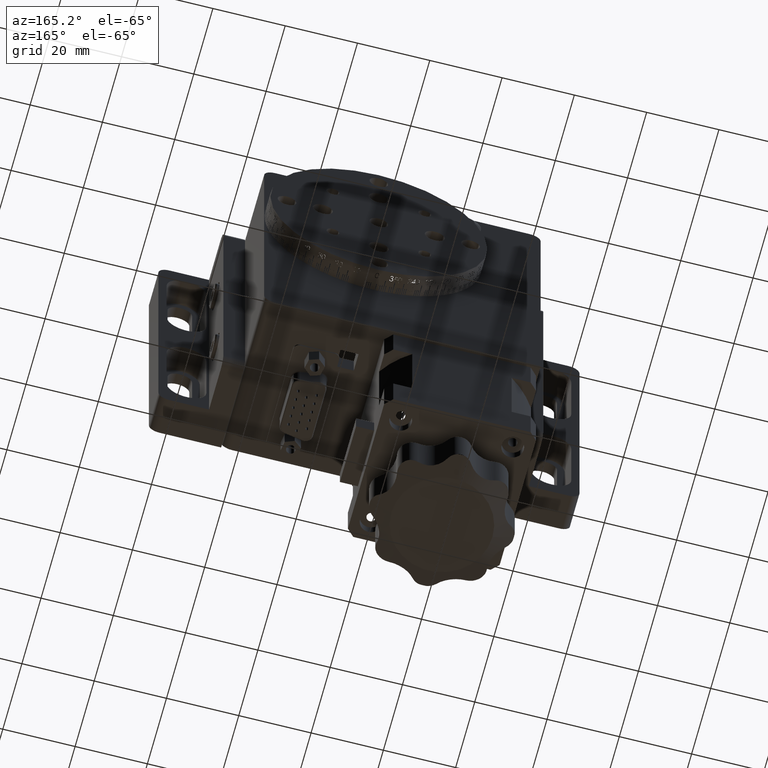
[diagram: clean part render]
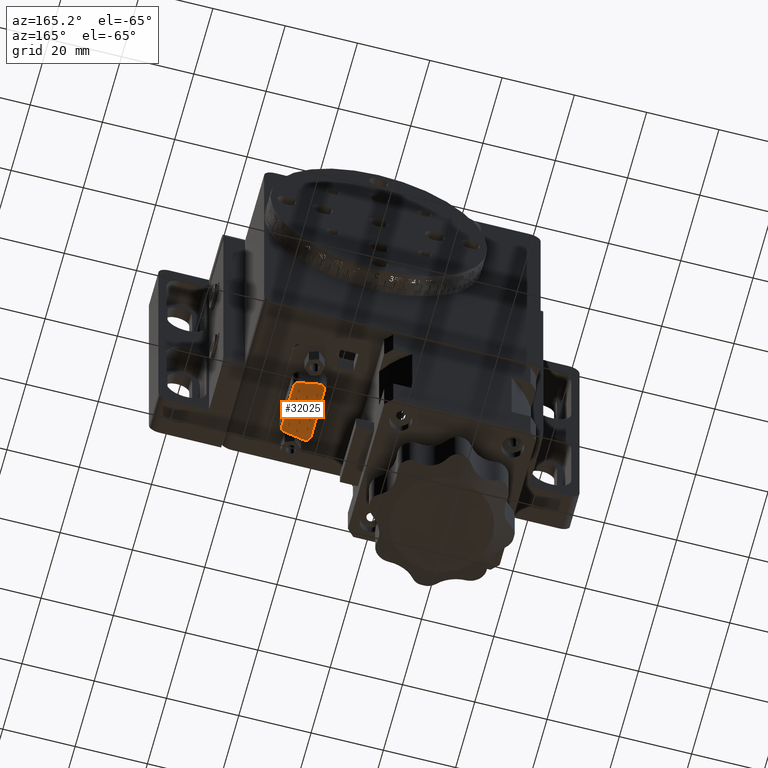
[diagram: same view with one face highlighted and labeled with its STEP entity id]
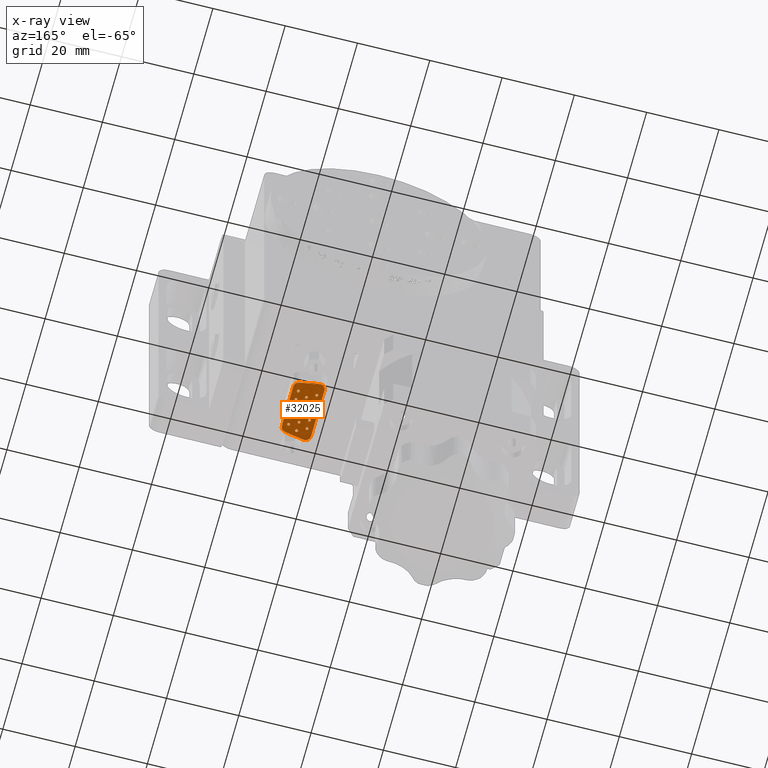
[diagram: x-ray of the same camera — body ghosted, the highlighted face saturated]
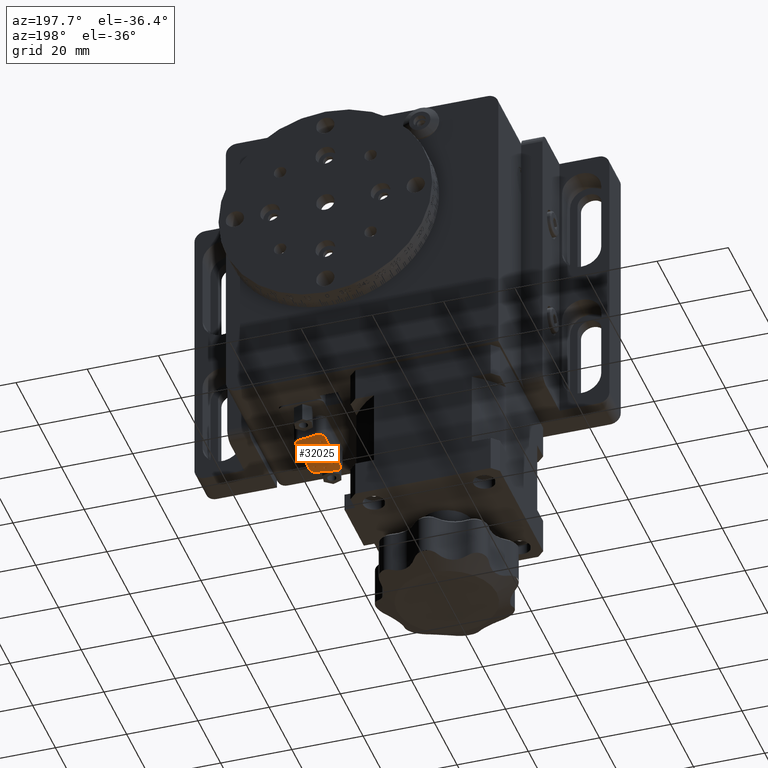
[diagram: same view with one face highlighted and labeled with its STEP entity id]
A machine part, auxiliary view. The second image highlights one B-rep face of the part: STEP entity #32025.
The next image is the same camera in x-ray: the body ghosted, the highlighted face saturated — about 0% of this face is hidden behind the body in this view.
A second angle (auxiliary view) of the same face is appended — the face is thin or edge-on in the first view.
In plain terms, the highlighted planar face has unit normal (-0, 0, -1).
Its self-contained STEP definition (entity closure, byte-faithful):
#244 = DIRECTION ( 'NONE',  ( 0.0000000000000000000, 1.000000000000000000, 0.0000000000000000000 ) ) ;
#1355 = VERTEX_POINT ( 'NONE', #33507 ) ;
#1472 = CARTESIAN_POINT ( 'NONE',  ( 61.66999999999999500, -22.90841392301681600, -6.330000000000007200 ) ) ;
#2205 = CARTESIAN_POINT ( 'NONE',  ( 56.45999999999999400, -17.25000000000000000, -6.330000000000006300 ) ) ;
#2445 = EDGE_LOOP ( 'NONE', ( #77622, #17074 ) ) ;
#2508 = DIRECTION ( 'NONE',  ( 0.0000000000000000000, 1.000000000000000000, 0.0000000000000000000 ) ) ;
#3229 = EDGE_CURVE ( 'NONE', #18492, #105889, #40163, .T. ) ;
#3634 = EDGE_CURVE ( 'NONE', #39946, #1355, #11012, .T. ) ;
#4353 = VERTEX_POINT ( 'NONE', #17652 ) ;
#4457 = CARTESIAN_POINT ( 'NONE',  ( 61.53999999999997800, -14.31000000000000000, -6.330000000000006300 ) ) ;
#5158 = EDGE_CURVE ( 'NONE', #19776, #97295, #109721, .T. ) ;
#5160 = EDGE_CURVE ( 'NONE', #86428, #110819, #46019, .T. ) ;
#5175 = VERTEX_POINT ( 'NONE', #73746 ) ;
#5352 = AXIS2_PLACEMENT_3D ( 'NONE', #89583, #37762, #98311 ) ;
#5374 = CARTESIAN_POINT ( 'NONE',  ( 56.45999999999998000, -11.36999999999999600, -6.330000000000002700 ) ) ;
#5687 = CARTESIAN_POINT ( 'NONE',  ( 54.82999999999999800, -23.84999999999999800, -6.330000000000006300 ) ) ;
#5762 = CARTESIAN_POINT ( 'NONE',  ( 59.00000000000000000, -18.12000000000000100, -6.330000000000006300 ) ) ;
#5775 = DIRECTION ( 'NONE',  ( 0.0000000000000000000, 1.000000000000000000, 0.0000000000000000000 ) ) ;
#6103 = EDGE_CURVE ( 'NONE', #25523, #111609, #41710, .T. ) ;
#6124 = DIRECTION ( 'NONE',  ( 5.395645891154398000E-017, -7.491594048742728900E-017, 1.000000000000000000 ) ) ;
#6446 = CARTESIAN_POINT ( 'NONE',  ( 61.53999999999998500, -11.77000000000000000, -6.330000000000006300 ) ) ;
#7264 = LINE ( 'NONE', #92084, #27589 ) ;
#7330 = DIRECTION ( 'NONE',  ( 0.0000000000000000000, 1.000000000000000000, 0.0000000000000000000 ) ) ;
#7624 = CARTESIAN_POINT ( 'NONE',  ( 61.53999999999999900, -16.44999999999999900, -6.330000000000006300 ) ) ;
#7739 = DIRECTION ( 'NONE',  ( 0.0000000000000000000, 1.000000000000000000, 0.0000000000000000000 ) ) ;
#8081 = ORIENTED_EDGE ( 'NONE', *, *, #3229, .T. ) ;
#8272 = DIRECTION ( 'NONE',  ( 5.395645891154398000E-017, -7.491594048742728900E-017, 1.000000000000000000 ) ) ;
#8492 = EDGE_CURVE ( 'NONE', #12714, #37989, #22098, .T. ) ;
#8660 = CARTESIAN_POINT ( 'NONE',  ( 59.00000000000000000, -23.59999999999999400, -6.330000000000007200 ) ) ;
#8931 = CARTESIAN_POINT ( 'NONE',  ( 58.99999999999998600, -12.63999999999999900, -6.330000000000006300 ) ) ;
#8948 = CIRCLE ( 'NONE', #77488, 0.4000000000000010200 ) ;
#8975 = AXIS2_PLACEMENT_3D ( 'NONE', #104138, #52309, #244 ) ;
#9596 = VERTEX_POINT ( 'NONE', #2205 ) ;
#9835 = AXIS2_PLACEMENT_3D ( 'NONE', #76296, #24374, #84990 ) ;
#10110 = VERTEX_POINT ( 'NONE', #12032 ) ;
#10211 = DIRECTION ( 'NONE',  ( 0.0000000000000000000, 1.000000000000000000, 0.0000000000000000000 ) ) ;
#10233 = EDGE_CURVE ( 'NONE', #9596, #71089, #13286, .T. ) ;
#10249 = CARTESIAN_POINT ( 'NONE',  ( 63.16999999999995900, -22.90841392301681600, -6.330000000000007200 ) ) ;
#10368 = DIRECTION ( 'NONE',  ( 5.395645891154398000E-017, -7.491594048742728900E-017, 1.000000000000000000 ) ) ;
#10410 = ORIENTED_EDGE ( 'NONE', *, *, #65155, .T. ) ;
#10602 = ORIENTED_EDGE ( 'NONE', *, *, #11764, .T. ) ;
#11012 = CIRCLE ( 'NONE', #44385, 0.4000000000000010200 ) ;
#11282 = EDGE_CURVE ( 'NONE', #93656, #46708, #17269, .T. ) ;
#11764 = EDGE_CURVE ( 'NONE', #23184, #49335, #8948, .T. ) ;
#12032 = CARTESIAN_POINT ( 'NONE',  ( 56.45999999999999400, -18.98999999999999800, -6.330000000000006300 ) ) ;
#12235 = FACE_BOUND ( 'NONE', #108002, .T. ) ;
#12369 = DIRECTION ( 'NONE',  ( 5.395645891154398000E-017, -7.491594048742728900E-017, 1.000000000000000000 ) ) ;
#12714 = VERTEX_POINT ( 'NONE', #49088 ) ;
#13113 = VERTEX_POINT ( 'NONE', #5374 ) ;
#13178 = DIRECTION ( 'NONE',  ( 0.0000000000000000000, 1.000000000000000000, 0.0000000000000000000 ) ) ;
#13286 = CIRCLE ( 'NONE', #34417, 0.4000000000000010200 ) ;
#13810 = CIRCLE ( 'NONE', #39918, 0.4000000000000010200 ) ;
#14222 = ORIENTED_EDGE ( 'NONE', *, *, #93413, .T. ) ;
#14295 = EDGE_CURVE ( 'NONE', #111124, #10110, #78829, .T. ) ;
#14493 = DIRECTION ( 'NONE',  ( 0.0000000000000000000, 1.000000000000000000, 0.0000000000000000000 ) ) ;
#14690 = CIRCLE ( 'NONE', #80369, 0.4000000000000010200 ) ;
#14928 = VERTEX_POINT ( 'NONE', #109494 ) ;
#15046 = FACE_BOUND ( 'NONE', #15284, .T. ) ;
#15135 = CIRCLE ( 'NONE', #108090, 0.4000000000000010200 ) ;
#15179 = DIRECTION ( 'NONE',  ( 0.0000000000000000000, 1.000000000000000000, 0.0000000000000000000 ) ) ;
#15284 = EDGE_LOOP ( 'NONE', ( #17588, #10602 ) ) ;
#15358 = CARTESIAN_POINT ( 'NONE',  ( 63.16999999999995900, -23.85000000000000100, -6.330000000000007200 ) ) ;
#15601 = CARTESIAN_POINT ( 'NONE',  ( 56.45999999999997200, -13.90999999999999800, -6.330000000000006300 ) ) ;
#15803 = EDGE_CURVE ( 'NONE', #1355, #39946, #99212, .T. ) ;
#15903 = ORIENTED_EDGE ( 'NONE', *, *, #8492, .T. ) ;
#16197 = CARTESIAN_POINT ( 'NONE',  ( 61.53999999999999900, -19.79000000000000300, -6.330000000000003600 ) ) ;
#16470 = AXIS2_PLACEMENT_3D ( 'NONE', #100702, #48866, #109439 ) ;
#16477 = DIRECTION ( 'NONE',  ( 5.395645891154398000E-017, -7.491594048742728900E-017, 1.000000000000000000 ) ) ;
#16750 = DIRECTION ( 'NONE',  ( 0.0000000000000000000, 1.000000000000000000, 0.0000000000000000000 ) ) ;
#17074 = ORIENTED_EDGE ( 'NONE', *, *, #23093, .T. ) ;
#17269 = CIRCLE ( 'NONE', #9835, 0.4000000000000010200 ) ;
#17588 = ORIENTED_EDGE ( 'NONE', *, *, #17983, .T. ) ;
#17652 = CARTESIAN_POINT ( 'NONE',  ( 61.53999999999998500, -12.17000000000000000, -6.330000000000006300 ) ) ;
#17983 = EDGE_CURVE ( 'NONE', #49335, #23184, #22960, .T. ) ;
#18069 = EDGE_LOOP ( 'NONE', ( #95389, #52453 ) ) ;
#18201 = CIRCLE ( 'NONE', #16470, 0.4000000000000010200 ) ;
#18492 = VERTEX_POINT ( 'NONE', #110656 ) ;
#18686 = CARTESIAN_POINT ( 'NONE',  ( 61.53999999999999900, -21.53000000000000100, -6.330000000000007200 ) ) ;
#19776 = VERTEX_POINT ( 'NONE', #7624 ) ;
#20276 = VERTEX_POINT ( 'NONE', #86678 ) ;
#20696 = ORIENTED_EDGE ( 'NONE', *, *, #10233, .T. ) ;
#20913 = ORIENTED_EDGE ( 'NONE', *, *, #5160, .T. ) ;
#22098 = CIRCLE ( 'NONE', #27755, 0.4000000000000010200 ) ;
#22160 = DIRECTION ( 'NONE',  ( 5.395645891154398000E-017, -7.491594048742728900E-017, 1.000000000000000000 ) ) ;
#22411 = ORIENTED_EDGE ( 'NONE', *, *, #109883, .T. ) ;
#22783 = CARTESIAN_POINT ( 'NONE',  ( 59.00000000000000000, -22.79999999999999400, -6.330000000000007200 ) ) ;
#22960 = CIRCLE ( 'NONE', #38603, 0.4000000000000010200 ) ;
#23055 = DIRECTION ( 'NONE',  ( 5.395645891154398000E-017, -7.491594048742728900E-017, 1.000000000000000000 ) ) ;
#23093 = EDGE_CURVE ( 'NONE', #13113, #61242, #79834, .T. ) ;
#23184 = VERTEX_POINT ( 'NONE', #15601 ) ;
#23272 = AXIS2_PLACEMENT_3D ( 'NONE', #65422, #70040, #69685 ) ;
#24044 = ORIENTED_EDGE ( 'NONE', *, *, #88451, .T. ) ;
#24374 = DIRECTION ( 'NONE',  ( 5.395645891154398000E-017, -7.491594048742728900E-017, 1.000000000000000000 ) ) ;
#24441 = CARTESIAN_POINT ( 'NONE',  ( 56.45999999999999400, -21.52999999999999800, -6.330000000000006300 ) ) ;
#24446 = AXIS2_PLACEMENT_3D ( 'NONE', #90903, #39089, #99635 ) ;
#24613 = CARTESIAN_POINT ( 'NONE',  ( 61.93047226650037400, -9.314374447464874900, -6.330000000000006300 ) ) ;
#25523 = VERTEX_POINT ( 'NONE', #24613 ) ;
#25701 = DIRECTION ( 'NONE',  ( 5.395645891154398000E-017, -7.491594048742728900E-017, 1.000000000000000000 ) ) ;
#25900 = VERTEX_POINT ( 'NONE', #81342 ) ;
#26799 = EDGE_CURVE ( 'NONE', #62152, #86428, #42000, .T. ) ;
#26915 = EDGE_CURVE ( 'NONE', #46708, #93656, #48748, .T. ) ;
#27197 = DIRECTION ( 'NONE',  ( 5.395645891154398000E-017, -7.491594048742728900E-017, 1.000000000000000000 ) ) ;
#27589 = VECTOR ( 'NONE', #40249, 999.9999999999998900 ) ;
#27755 = AXIS2_PLACEMENT_3D ( 'NONE', #4457, #65141, #13178 ) ;
#28376 = ORIENTED_EDGE ( 'NONE', *, *, #75780, .T. ) ;
#28574 = AXIS2_PLACEMENT_3D ( 'NONE', #79147, #27197, #87803 ) ;
#28971 = CARTESIAN_POINT ( 'NONE',  ( 56.45999999999997200, -14.31000000000000000, -6.330000000000006300 ) ) ;
#29766 = EDGE_CURVE ( 'NONE', #84507, #67199, #67179, .T. ) ;
#30190 = AXIS2_PLACEMENT_3D ( 'NONE', #43814, #104402, #52572 ) ;
#30394 = VERTEX_POINT ( 'NONE', #60689 ) ;
#31775 = CARTESIAN_POINT ( 'NONE',  ( 61.66999999999998000, -10.79158607698318700, -6.330000000000006300 ) ) ;
#31959 = ORIENTED_EDGE ( 'NONE', *, *, #87037, .T. ) ;
#32025 = ADVANCED_FACE ( 'NONE', ( #86895, #40842, #63853, #107206, #109954, #84210, #61167, #38107, #15046, #104491, #81467, #58446, #35378, #12235, #101776, #78787 ), #50405, .T. ) ;
#32236 = AXIS2_PLACEMENT_3D ( 'NONE', #51969, #112547, #60675 ) ;
#32433 = CIRCLE ( 'NONE', #28574, 0.4000000000000010200 ) ;
#32903 = DIRECTION ( 'NONE',  ( -5.395645891154398000E-017, 7.491594048742728900E-017, -1.000000000000000000 ) ) ;
#33108 = EDGE_LOOP ( 'NONE', ( #47996, #70120 ) ) ;
#33283 = DIRECTION ( 'NONE',  ( 0.0000000000000000000, 1.000000000000000000, 0.0000000000000000000 ) ) ;
#33507 = CARTESIAN_POINT ( 'NONE',  ( 58.99999999999998600, -13.44000000000000100, -6.330000000000006300 ) ) ;
#33627 = DIRECTION ( 'NONE',  ( 5.395645891154398000E-017, -7.491594048742728900E-017, 1.000000000000000000 ) ) ;
#34417 = AXIS2_PLACEMENT_3D ( 'NONE', #75046, #23055, #83713 ) ;
#34805 = EDGE_LOOP ( 'NONE', ( #31959, #71082 ) ) ;
#35378 = FACE_BOUND ( 'NONE', #34805, .T. ) ;
#35541 = CARTESIAN_POINT ( 'NONE',  ( 58.99999999999998600, -13.03999999999999900, -6.330000000000006300 ) ) ;
#36035 = CARTESIAN_POINT ( 'NONE',  ( 54.82999999999999800, -23.84999999999999800, -6.330000000000006300 ) ) ;
#36276 = DIRECTION ( 'NONE',  ( 0.0000000000000000000, 1.000000000000000000, 0.0000000000000000000 ) ) ;
#36830 = ORIENTED_EDGE ( 'NONE', *, *, #71643, .T. ) ;
#37077 = AXIS2_PLACEMENT_3D ( 'NONE', #68455, #16477, #77146 ) ;
#37717 = CIRCLE ( 'NONE', #76281, 0.4000000000000010200 ) ;
#37745 = DIRECTION ( 'NONE',  ( 0.0000000000000000000, 1.000000000000000000, 0.0000000000000000000 ) ) ;
#37762 = DIRECTION ( 'NONE',  ( -5.395645891154398000E-017, 7.491594048742728900E-017, -1.000000000000000000 ) ) ;
#37970 = CARTESIAN_POINT ( 'NONE',  ( 56.45999999999999400, -16.85000000000000100, -6.330000000000006300 ) ) ;
#37989 = VERTEX_POINT ( 'NONE', #64540 ) ;
#38021 = DIRECTION ( 'NONE',  ( 5.395645891154398000E-017, -7.491594048742728900E-017, 1.000000000000000000 ) ) ;
#38107 = FACE_BOUND ( 'NONE', #2445, .T. ) ;
#38603 = AXIS2_PLACEMENT_3D ( 'NONE', #28971, #89564, #37745 ) ;
#38639 = EDGE_LOOP ( 'NONE', ( #80535, #28376 ) ) ;
#39089 = DIRECTION ( 'NONE',  ( 5.395645891154398000E-017, -7.491594048742728900E-017, 1.000000000000000000 ) ) ;
#39280 = VECTOR ( 'NONE', #44748, 1000.000000000000000 ) ;
#39918 = AXIS2_PLACEMENT_3D ( 'NONE', #111195, #59304, #7330 ) ;
#39946 = VERTEX_POINT ( 'NONE', #8931 ) ;
#40163 = CIRCLE ( 'NONE', #23272, 0.4000000000000010200 ) ;
#40249 = DIRECTION ( 'NONE',  ( 0.9848077530122086900, -0.1736481776669273900, -6.614575560501901600E-017 ) ) ;
#40463 = CIRCLE ( 'NONE', #62597, 0.4000000000000010200 ) ;
#40842 = FACE_BOUND ( 'NONE', #94941, .T. ) ;
#41710 = CIRCLE ( 'NONE', #60358, 1.499999999999999600 ) ;
#41993 = CARTESIAN_POINT ( 'NONE',  ( 59.00000000000000000, -20.25999999999999400, -6.330000000000006300 ) ) ;
#42000 = LINE ( 'NONE', #36035, #39280 ) ;
#42065 = DIRECTION ( 'NONE',  ( -5.395645891154398000E-017, 7.491594048742746200E-017, -1.000000000000000000 ) ) ;
#43560 = AXIS2_PLACEMENT_3D ( 'NONE', #92218, #88359, #45703 ) ;
#43814 = CARTESIAN_POINT ( 'NONE',  ( 61.53999999999997800, -14.31000000000000000, -6.330000000000006300 ) ) ;
#43925 = ORIENTED_EDGE ( 'NONE', *, *, #83230, .T. ) ;
#44098 = CARTESIAN_POINT ( 'NONE',  ( 56.45999999999999400, -19.39000000000000100, -6.330000000000006300 ) ) ;
#44385 = AXIS2_PLACEMENT_3D ( 'NONE', #35541, #64536, #16750 ) ;
#44748 = DIRECTION ( 'NONE',  ( 2.220446049250313100E-016, 1.000000000000000000, 7.491594048742744900E-017 ) ) ;
#45555 = DIRECTION ( 'NONE',  ( 5.395645891154398000E-017, -7.491594048742728900E-017, 1.000000000000000000 ) ) ;
#45703 = DIRECTION ( 'NONE',  ( 0.0000000000000000000, 1.000000000000000000, 0.0000000000000000000 ) ) ;
#46019 = CIRCLE ( 'NONE', #49412, 1.500000000000001300 ) ;
#46658 = DIRECTION ( 'NONE',  ( 0.0000000000000000000, 1.000000000000000000, 0.0000000000000000000 ) ) ;
#46684 = AXIS2_PLACEMENT_3D ( 'NONE', #97432, #45555, #106156 ) ;
#46708 = VERTEX_POINT ( 'NONE', #57085 ) ;
#47943 = EDGE_CURVE ( 'NONE', #90513, #50594, #108986, .T. ) ;
#47996 = ORIENTED_EDGE ( 'NONE', *, *, #14295, .T. ) ;
#48155 = ORIENTED_EDGE ( 'NONE', *, *, #104919, .T. ) ;
#48717 = CARTESIAN_POINT ( 'NONE',  ( 59.00000000000000000, -21.05999999999999500, -6.330000000000006300 ) ) ;
#48748 = CIRCLE ( 'NONE', #24446, 0.4000000000000010200 ) ;
#48866 = DIRECTION ( 'NONE',  ( 5.395645891154398000E-017, -7.491594048742728900E-017, 1.000000000000000000 ) ) ;
#49088 = CARTESIAN_POINT ( 'NONE',  ( 61.53999999999997800, -13.90999999999999800, -6.330000000000006300 ) ) ;
#49335 = VERTEX_POINT ( 'NONE', #70624 ) ;
#49337 = VERTEX_POINT ( 'NONE', #18686 ) ;
#49412 = AXIS2_PLACEMENT_3D ( 'NONE', #85046, #101330, #36276 ) ;
#49872 = ORIENTED_EDGE ( 'NONE', *, *, #106077, .T. ) ;
#50405 = PLANE ( 'NONE',  #71245 ) ;
#50594 = VERTEX_POINT ( 'NONE', #22783 ) ;
#51538 = AXIS2_PLACEMENT_3D ( 'NONE', #111589, #59697, #7739 ) ;
#51969 = CARTESIAN_POINT ( 'NONE',  ( 61.53999999999999900, -19.39000000000000100, -6.330000000000003600 ) ) ;
#52309 = DIRECTION ( 'NONE',  ( -5.395645891154398000E-017, 7.491594048742728900E-017, -1.000000000000000000 ) ) ;
#52453 = ORIENTED_EDGE ( 'NONE', *, *, #11282, .T. ) ;
#52572 = DIRECTION ( 'NONE',  ( 0.0000000000000000000, 1.000000000000000000, 0.0000000000000000000 ) ) ;
#52813 = DIRECTION ( 'NONE',  ( 0.0000000000000000000, 1.000000000000000000, 0.0000000000000000000 ) ) ;
#53622 = EDGE_CURVE ( 'NONE', #25900, #62152, #72294, .T. ) ;
#53676 = AXIS2_PLACEMENT_3D ( 'NONE', #74140, #22160, #82811 ) ;
#54505 = DIRECTION ( 'NONE',  ( 5.395645891154398000E-017, -7.491594048742728900E-017, 1.000000000000000000 ) ) ;
#57085 = CARTESIAN_POINT ( 'NONE',  ( 56.45999999999999400, -22.32999999999999800, -6.330000000000006300 ) ) ;
#57733 = DIRECTION ( 'NONE',  ( 5.395645891154398000E-017, -7.491594048742728900E-017, 1.000000000000000000 ) ) ;
#58084 = CARTESIAN_POINT ( 'NONE',  ( 56.45999999999998000, -11.76999999999999800, -6.330000000000002700 ) ) ;
#58446 = FACE_BOUND ( 'NONE', #38639, .T. ) ;
#59207 = ORIENTED_EDGE ( 'NONE', *, *, #3634, .T. ) ;
#59304 = DIRECTION ( 'NONE',  ( 5.395645891154398000E-017, -7.491594048742728900E-017, 1.000000000000000000 ) ) ;
#59314 = AXIS2_PLACEMENT_3D ( 'NONE', #64336, #12369, #73098 ) ;
#59586 = CIRCLE ( 'NONE', #106049, 0.4000000000000010200 ) ;
#59697 = DIRECTION ( 'NONE',  ( 5.395645891154398000E-017, -7.491594048742728900E-017, 1.000000000000000000 ) ) ;
#60232 = CARTESIAN_POINT ( 'NONE',  ( 56.45999999999997200, -14.31000000000000000, -6.330000000000006300 ) ) ;
#60358 = AXIS2_PLACEMENT_3D ( 'NONE', #31775, #32903, #33283 ) ;
#60675 = DIRECTION ( 'NONE',  ( 0.0000000000000000000, 1.000000000000000000, 0.0000000000000000000 ) ) ;
#60689 = CARTESIAN_POINT ( 'NONE',  ( 61.93047226650038800, -24.38562555253512800, -6.330000000000007200 ) ) ;
#61049 = EDGE_CURVE ( 'NONE', #10110, #111124, #104539, .T. ) ;
#61167 = FACE_BOUND ( 'NONE', #101335, .T. ) ;
#61242 = VERTEX_POINT ( 'NONE', #70659 ) ;
#62125 = ORIENTED_EDGE ( 'NONE', *, *, #15803, .T. ) ;
#62152 = VERTEX_POINT ( 'NONE', #5687 ) ;
#62190 = DIRECTION ( 'NONE',  ( -5.395645891154398000E-017, 7.491594048742728900E-017, -1.000000000000000000 ) ) ;
#62364 = CARTESIAN_POINT ( 'NONE',  ( 56.45999999999998000, -11.76999999999999800, -6.330000000000002700 ) ) ;
#62597 = AXIS2_PLACEMENT_3D ( 'NONE', #77624, #25701, #86287 ) ;
#63751 = AXIS2_PLACEMENT_3D ( 'NONE', #106379, #54505, #2508 ) ;
#63853 = FACE_BOUND ( 'NONE', #95559, .T. ) ;
#64051 = DIRECTION ( 'NONE',  ( -0.9848077530122086900, -0.1736481776669269700, 4.012772251732751600E-017 ) ) ;
#64336 = CARTESIAN_POINT ( 'NONE',  ( 59.00000000000000000, -23.19999999999999600, -6.330000000000007200 ) ) ;
#64445 = CARTESIAN_POINT ( 'NONE',  ( 54.82999999999997700, -9.849999999999999600, -6.330000000000005400 ) ) ;
#64536 = DIRECTION ( 'NONE',  ( 5.395645891154398000E-017, -7.491594048742728900E-017, 1.000000000000000000 ) ) ;
#64540 = CARTESIAN_POINT ( 'NONE',  ( 61.53999999999997800, -14.71000000000000100, -6.330000000000006300 ) ) ;
#64633 = EDGE_LOOP ( 'NONE', ( #62125, #59207 ) ) ;
#65141 = DIRECTION ( 'NONE',  ( 5.395645891154398000E-017, -7.491594048742728900E-017, 1.000000000000000000 ) ) ;
#65155 = EDGE_CURVE ( 'NONE', #111609, #72796, #74116, .T. ) ;
#65422 = CARTESIAN_POINT ( 'NONE',  ( 58.99999999999997900, -15.58000000000000000, -6.330000000000006300 ) ) ;
#66331 = ORIENTED_EDGE ( 'NONE', *, *, #98650, .T. ) ;
#66430 = DIRECTION ( 'NONE',  ( 5.395645891154398000E-017, -7.491594048742728900E-017, 1.000000000000000000 ) ) ;
#66601 = EDGE_LOOP ( 'NONE', ( #48155, #109778 ) ) ;
#66817 = DIRECTION ( 'NONE',  ( 0.0000000000000000000, 1.000000000000000000, 0.0000000000000000000 ) ) ;
#67134 = DIRECTION ( 'NONE',  ( 5.395645891154398000E-017, -7.491594048742728900E-017, 1.000000000000000000 ) ) ;
#67163 = CARTESIAN_POINT ( 'NONE',  ( 63.17000000000000200, -10.79158607698318700, -6.330000000000006300 ) ) ;
#67179 = CIRCLE ( 'NONE', #51538, 0.4000000000000010200 ) ;
#67199 = VERTEX_POINT ( 'NONE', #48717 ) ;
#68455 = CARTESIAN_POINT ( 'NONE',  ( 56.45999999999999400, -19.39000000000000100, -6.330000000000006300 ) ) ;
#68972 = DIRECTION ( 'NONE',  ( 0.0000000000000000000, 1.000000000000000000, 0.0000000000000000000 ) ) ;
#69685 = DIRECTION ( 'NONE',  ( 0.0000000000000000000, 1.000000000000000000, 0.0000000000000000000 ) ) ;
#69775 = VECTOR ( 'NONE', #64051, 1000.000000000000100 ) ;
#70040 = DIRECTION ( 'NONE',  ( 5.395645891154398000E-017, -7.491594048742728900E-017, 1.000000000000000000 ) ) ;
#70120 = ORIENTED_EDGE ( 'NONE', *, *, #61049, .T. ) ;
#70624 = CARTESIAN_POINT ( 'NONE',  ( 56.45999999999997200, -14.71000000000000100, -6.330000000000006300 ) ) ;
#70659 = CARTESIAN_POINT ( 'NONE',  ( 56.45999999999998000, -12.16999999999999800, -6.330000000000002700 ) ) ;
#70677 = EDGE_CURVE ( 'NONE', #105889, #18492, #81885, .T. ) ;
#71082 = ORIENTED_EDGE ( 'NONE', *, *, #5158, .T. ) ;
#71089 = VERTEX_POINT ( 'NONE', #101578 ) ;
#71099 = DIRECTION ( 'NONE',  ( 0.0000000000000000000, 1.000000000000000000, 0.0000000000000000000 ) ) ;
#71245 = AXIS2_PLACEMENT_3D ( 'NONE', #93889, #42065, #102609 ) ;
#71400 = VECTOR ( 'NONE', #102462, 1000.000000000000000 ) ;
#71643 = EDGE_CURVE ( 'NONE', #88913, #20276, #37717, .T. ) ;
#71735 = CIRCLE ( 'NONE', #8975, 1.500000000000001300 ) ;
#72294 = CIRCLE ( 'NONE', #5352, 1.500000000000001300 ) ;
#72492 = LINE ( 'NONE', #81126, #69775 ) ;
#72796 = VERTEX_POINT ( 'NONE', #10249 ) ;
#73098 = DIRECTION ( 'NONE',  ( 0.0000000000000000000, 1.000000000000000000, 0.0000000000000000000 ) ) ;
#73178 = CARTESIAN_POINT ( 'NONE',  ( 61.53999999999998500, -11.36999999999999700, -6.330000000000006300 ) ) ;
#73276 = ORIENTED_EDGE ( 'NONE', *, *, #92315, .T. ) ;
#73746 = CARTESIAN_POINT ( 'NONE',  ( 56.59047226650037000, -8.372788370481687900, -6.330000000000005400 ) ) ;
#73885 = EDGE_LOOP ( 'NONE', ( #14222, #73276 ) ) ;
#74116 = LINE ( 'NONE', #15358, #71400 ) ;
#74140 = CARTESIAN_POINT ( 'NONE',  ( 58.99999999999997900, -15.58000000000000000, -6.330000000000006300 ) ) ;
#75026 = ORIENTED_EDGE ( 'NONE', *, *, #26799, .T. ) ;
#75046 = CARTESIAN_POINT ( 'NONE',  ( 56.45999999999999400, -16.85000000000000100, -6.330000000000006300 ) ) ;
#75780 = EDGE_CURVE ( 'NONE', #50594, #90513, #106718, .T. ) ;
#76115 = ORIENTED_EDGE ( 'NONE', *, *, #111295, .T. ) ;
#76281 = AXIS2_PLACEMENT_3D ( 'NONE', #5762, #66430, #14493 ) ;
#76296 = CARTESIAN_POINT ( 'NONE',  ( 56.45999999999999400, -21.93000000000000000, -6.330000000000006300 ) ) ;
#76661 = CARTESIAN_POINT ( 'NONE',  ( 61.53999999999999900, -18.98999999999999800, -6.330000000000003600 ) ) ;
#77146 = DIRECTION ( 'NONE',  ( 0.0000000000000000000, 1.000000000000000000, 0.0000000000000000000 ) ) ;
#77439 = AXIS2_PLACEMENT_3D ( 'NONE', #62364, #10368, #71099 ) ;
#77488 = AXIS2_PLACEMENT_3D ( 'NONE', #60232, #8272, #68972 ) ;
#77622 = ORIENTED_EDGE ( 'NONE', *, *, #85848, .T. ) ;
#77624 = CARTESIAN_POINT ( 'NONE',  ( 61.53999999999998500, -11.77000000000000000, -6.330000000000006300 ) ) ;
#78560 = CARTESIAN_POINT ( 'NONE',  ( 58.99999999999997900, -15.98000000000000000, -6.330000000000006300 ) ) ;
#78787 = FACE_BOUND ( 'NONE', #64633, .T. ) ;
#78829 = CIRCLE ( 'NONE', #79793, 0.4000000000000010200 ) ;
#79147 = CARTESIAN_POINT ( 'NONE',  ( 61.53999999999999900, -19.39000000000000100, -6.330000000000003600 ) ) ;
#79793 = AXIS2_PLACEMENT_3D ( 'NONE', #44098, #104662, #52813 ) ;
#79834 = CIRCLE ( 'NONE', #94621, 0.4000000000000010200 ) ;
#80369 = AXIS2_PLACEMENT_3D ( 'NONE', #89850, #38021, #98581 ) ;
#80535 = ORIENTED_EDGE ( 'NONE', *, *, #47943, .T. ) ;
#81126 = CARTESIAN_POINT ( 'NONE',  ( 56.59047226650038500, -25.32721162951831000, -6.330000000000007200 ) ) ;
#81342 = CARTESIAN_POINT ( 'NONE',  ( 56.59047226650038500, -25.32721162951831000, -6.330000000000007200 ) ) ;
#81467 = FACE_BOUND ( 'NONE', #103944, .T. ) ;
#81885 = CIRCLE ( 'NONE', #53676, 0.4000000000000010200 ) ;
#82811 = DIRECTION ( 'NONE',  ( 0.0000000000000000000, 1.000000000000000000, 0.0000000000000000000 ) ) ;
#83230 = EDGE_CURVE ( 'NONE', #88265, #110484, #32433, .T. ) ;
#83506 = EDGE_CURVE ( 'NONE', #110819, #5175, #71735, .T. ) ;
#83713 = DIRECTION ( 'NONE',  ( 0.0000000000000000000, 1.000000000000000000, 0.0000000000000000000 ) ) ;
#84210 = FACE_BOUND ( 'NONE', #18069, .T. ) ;
#84507 = VERTEX_POINT ( 'NONE', #41993 ) ;
#84990 = DIRECTION ( 'NONE',  ( 0.0000000000000000000, 1.000000000000000000, 0.0000000000000000000 ) ) ;
#85046 = CARTESIAN_POINT ( 'NONE',  ( 56.32999999999998400, -9.849999999999999600, -6.330000000000005400 ) ) ;
#85274 = VERTEX_POINT ( 'NONE', #73178 ) ;
#85533 = CARTESIAN_POINT ( 'NONE',  ( 61.53999999999999900, -21.93000000000000300, -6.330000000000007200 ) ) ;
#85848 = EDGE_CURVE ( 'NONE', #61242, #13113, #87387, .T. ) ;
#86287 = DIRECTION ( 'NONE',  ( 0.0000000000000000000, 1.000000000000000000, 0.0000000000000000000 ) ) ;
#86333 = ORIENTED_EDGE ( 'NONE', *, *, #106412, .T. ) ;
#86428 = VERTEX_POINT ( 'NONE', #64445 ) ;
#86678 = CARTESIAN_POINT ( 'NONE',  ( 59.00000000000000000, -18.52000000000000300, -6.330000000000006300 ) ) ;
#86895 = FACE_OUTER_BOUND ( 'NONE', #88376, .T. ) ;
#87037 = EDGE_CURVE ( 'NONE', #97295, #19776, #18201, .T. ) ;
#87387 = CIRCLE ( 'NONE', #77439, 0.4000000000000010200 ) ;
#87803 = DIRECTION ( 'NONE',  ( 0.0000000000000000000, 1.000000000000000000, 0.0000000000000000000 ) ) ;
#88265 = VERTEX_POINT ( 'NONE', #76661 ) ;
#88359 = DIRECTION ( 'NONE',  ( 5.395645891154398000E-017, -7.491594048742728900E-017, 1.000000000000000000 ) ) ;
#88376 = EDGE_LOOP ( 'NONE', ( #20913, #104420, #86333, #93692, #10410, #24044, #22411, #94763, #75026 ) ) ;
#88451 = EDGE_CURVE ( 'NONE', #72796, #30394, #103194, .T. ) ;
#88523 = CARTESIAN_POINT ( 'NONE',  ( 59.00000000000000000, -17.71999999999999900, -6.330000000000006300 ) ) ;
#88678 = CIRCLE ( 'NONE', #32236, 0.4000000000000010200 ) ;
#88913 = VERTEX_POINT ( 'NONE', #88523 ) ;
#89564 = DIRECTION ( 'NONE',  ( 5.395645891154398000E-017, -7.491594048742728900E-017, 1.000000000000000000 ) ) ;
#89582 = CARTESIAN_POINT ( 'NONE',  ( 56.45999999999999400, -19.79000000000000300, -6.330000000000006300 ) ) ;
#89583 = CARTESIAN_POINT ( 'NONE',  ( 56.32999999999999800, -23.84999999999999800, -6.330000000000003600 ) ) ;
#89850 = CARTESIAN_POINT ( 'NONE',  ( 61.53999999999999900, -21.93000000000000300, -6.330000000000007200 ) ) ;
#90513 = VERTEX_POINT ( 'NONE', #8660 ) ;
#90595 = CIRCLE ( 'NONE', #103897, 0.4000000000000010200 ) ;
#90894 = CARTESIAN_POINT ( 'NONE',  ( 61.53999999999999900, -17.25000000000000000, -6.330000000000006300 ) ) ;
#90903 = CARTESIAN_POINT ( 'NONE',  ( 56.45999999999999400, -21.93000000000000000, -6.330000000000006300 ) ) ;
#92039 = EDGE_CURVE ( 'NONE', #71089, #9596, #59586, .T. ) ;
#92070 = CIRCLE ( 'NONE', #30190, 0.4000000000000010200 ) ;
#92084 = CARTESIAN_POINT ( 'NONE',  ( 61.93047226650037400, -9.314374447464874900, -6.330000000000006300 ) ) ;
#92218 = CARTESIAN_POINT ( 'NONE',  ( 61.53999999999999900, -16.85000000000000100, -6.330000000000006300 ) ) ;
#92315 = EDGE_CURVE ( 'NONE', #85274, #4353, #90595, .T. ) ;
#93413 = EDGE_CURVE ( 'NONE', #4353, #85274, #40463, .T. ) ;
#93656 = VERTEX_POINT ( 'NONE', #24441 ) ;
#93692 = ORIENTED_EDGE ( 'NONE', *, *, #6103, .T. ) ;
#93889 = CARTESIAN_POINT ( 'NONE',  ( 56.32999999999999800, -23.84999999999999800, -6.330000000000003600 ) ) ;
#94216 = DIRECTION ( 'NONE',  ( 0.0000000000000000000, 1.000000000000000000, 0.0000000000000000000 ) ) ;
#94621 = AXIS2_PLACEMENT_3D ( 'NONE', #58084, #6124, #66817 ) ;
#94763 = ORIENTED_EDGE ( 'NONE', *, *, #53622, .T. ) ;
#94941 = EDGE_LOOP ( 'NONE', ( #97824, #8081 ) ) ;
#94948 = AXIS2_PLACEMENT_3D ( 'NONE', #1472, #62190, #10211 ) ;
#95389 = ORIENTED_EDGE ( 'NONE', *, *, #26915, .T. ) ;
#95559 = EDGE_LOOP ( 'NONE', ( #97513, #15903 ) ) ;
#95748 = CIRCLE ( 'NONE', #46684, 0.4000000000000010200 ) ;
#97295 = VERTEX_POINT ( 'NONE', #90894 ) ;
#97432 = CARTESIAN_POINT ( 'NONE',  ( 59.00000000000000000, -20.65999999999999300, -6.330000000000006300 ) ) ;
#97513 = ORIENTED_EDGE ( 'NONE', *, *, #98136, .T. ) ;
#97824 = ORIENTED_EDGE ( 'NONE', *, *, #70677, .T. ) ;
#98136 = EDGE_CURVE ( 'NONE', #37989, #12714, #92070, .T. ) ;
#98311 = DIRECTION ( 'NONE',  ( 0.0000000000000000000, 1.000000000000000000, 0.0000000000000000000 ) ) ;
#98522 = DIRECTION ( 'NONE',  ( 5.395645891154398000E-017, -7.491594048742728900E-017, 1.000000000000000000 ) ) ;
#98581 = DIRECTION ( 'NONE',  ( 0.0000000000000000000, 1.000000000000000000, 0.0000000000000000000 ) ) ;
#98605 = EDGE_LOOP ( 'NONE', ( #49872, #43925 ) ) ;
#98650 = EDGE_CURVE ( 'NONE', #14928, #49337, #14690, .T. ) ;
#99212 = CIRCLE ( 'NONE', #105961, 0.4000000000000010200 ) ;
#99635 = DIRECTION ( 'NONE',  ( 0.0000000000000000000, 1.000000000000000000, 0.0000000000000000000 ) ) ;
#100702 = CARTESIAN_POINT ( 'NONE',  ( 61.53999999999999900, -16.85000000000000100, -6.330000000000006300 ) ) ;
#101057 = CARTESIAN_POINT ( 'NONE',  ( 56.32999999999998400, -8.349999999999997900, -6.330000000000005400 ) ) ;
#101226 = ORIENTED_EDGE ( 'NONE', *, *, #110909, .T. ) ;
#101330 = DIRECTION ( 'NONE',  ( -5.395645891154398000E-017, 7.491594048742728900E-017, -1.000000000000000000 ) ) ;
#101335 = EDGE_LOOP ( 'NONE', ( #20696, #108785 ) ) ;
#101578 = CARTESIAN_POINT ( 'NONE',  ( 56.45999999999999400, -16.44999999999999900, -6.330000000000006300 ) ) ;
#101776 = FACE_BOUND ( 'NONE', #73885, .T. ) ;
#102462 = DIRECTION ( 'NONE',  ( -2.220446049250313100E-016, -1.000000000000000000, -7.491594048742744900E-017 ) ) ;
#102609 = DIRECTION ( 'NONE',  ( 2.220446049250313100E-016, 1.000000000000000000, 7.491594048742744900E-017 ) ) ;
#103194 = CIRCLE ( 'NONE', #94948, 1.500000000000001300 ) ;
#103897 = AXIS2_PLACEMENT_3D ( 'NONE', #6446, #67134, #15179 ) ;
#103944 = EDGE_LOOP ( 'NONE', ( #66331, #101226 ) ) ;
#104138 = CARTESIAN_POINT ( 'NONE',  ( 56.32999999999998400, -9.849999999999999600, -6.330000000000005400 ) ) ;
#104402 = DIRECTION ( 'NONE',  ( 5.395645891154398000E-017, -7.491594048742728900E-017, 1.000000000000000000 ) ) ;
#104420 = ORIENTED_EDGE ( 'NONE', *, *, #83506, .T. ) ;
#104491 = FACE_BOUND ( 'NONE', #33108, .T. ) ;
#104539 = CIRCLE ( 'NONE', #37077, 0.4000000000000010200 ) ;
#104662 = DIRECTION ( 'NONE',  ( 5.395645891154398000E-017, -7.491594048742728900E-017, 1.000000000000000000 ) ) ;
#104919 = EDGE_CURVE ( 'NONE', #67199, #84507, #95748, .T. ) ;
#105889 = VERTEX_POINT ( 'NONE', #78560 ) ;
#105961 = AXIS2_PLACEMENT_3D ( 'NONE', #109609, #57733, #5775 ) ;
#106049 = AXIS2_PLACEMENT_3D ( 'NONE', #37970, #98522, #46658 ) ;
#106077 = EDGE_CURVE ( 'NONE', #110484, #88265, #88678, .T. ) ;
#106156 = DIRECTION ( 'NONE',  ( 0.0000000000000000000, 1.000000000000000000, 0.0000000000000000000 ) ) ;
#106379 = CARTESIAN_POINT ( 'NONE',  ( 59.00000000000000000, -23.19999999999999600, -6.330000000000007200 ) ) ;
#106412 = EDGE_CURVE ( 'NONE', #5175, #25523, #7264, .T. ) ;
#106718 = CIRCLE ( 'NONE', #59314, 0.4000000000000010200 ) ;
#107206 = FACE_BOUND ( 'NONE', #66601, .T. ) ;
#108002 = EDGE_LOOP ( 'NONE', ( #76115, #36830 ) ) ;
#108090 = AXIS2_PLACEMENT_3D ( 'NONE', #85533, #33627, #94216 ) ;
#108785 = ORIENTED_EDGE ( 'NONE', *, *, #92039, .T. ) ;
#108986 = CIRCLE ( 'NONE', #63751, 0.4000000000000010200 ) ;
#109439 = DIRECTION ( 'NONE',  ( 0.0000000000000000000, 1.000000000000000000, 0.0000000000000000000 ) ) ;
#109494 = CARTESIAN_POINT ( 'NONE',  ( 61.53999999999999900, -22.33000000000000200, -6.330000000000007200 ) ) ;
#109609 = CARTESIAN_POINT ( 'NONE',  ( 58.99999999999998600, -13.03999999999999900, -6.330000000000006300 ) ) ;
#109721 = CIRCLE ( 'NONE', #43560, 0.4000000000000010200 ) ;
#109778 = ORIENTED_EDGE ( 'NONE', *, *, #29766, .T. ) ;
#109883 = EDGE_CURVE ( 'NONE', #30394, #25900, #72492, .T. ) ;
#109954 = FACE_BOUND ( 'NONE', #98605, .T. ) ;
#110484 = VERTEX_POINT ( 'NONE', #16197 ) ;
#110656 = CARTESIAN_POINT ( 'NONE',  ( 58.99999999999997900, -15.18000000000000000, -6.330000000000006300 ) ) ;
#110819 = VERTEX_POINT ( 'NONE', #101057 ) ;
#110909 = EDGE_CURVE ( 'NONE', #49337, #14928, #15135, .T. ) ;
#111124 = VERTEX_POINT ( 'NONE', #89582 ) ;
#111195 = CARTESIAN_POINT ( 'NONE',  ( 59.00000000000000000, -18.12000000000000100, -6.330000000000006300 ) ) ;
#111295 = EDGE_CURVE ( 'NONE', #20276, #88913, #13810, .T. ) ;
#111589 = CARTESIAN_POINT ( 'NONE',  ( 59.00000000000000000, -20.65999999999999300, -6.330000000000006300 ) ) ;
#111609 = VERTEX_POINT ( 'NONE', #67163 ) ;
#112547 = DIRECTION ( 'NONE',  ( 5.395645891154398000E-017, -7.491594048742728900E-017, 1.000000000000000000 ) ) ;